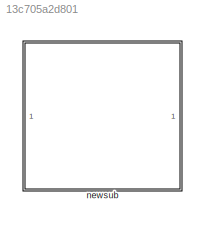
MODEL slx_13c705a2d801
KIND model
CONFIG AbsTol = auto
CONFIG EnableMultiTasking = off
CONFIG FixedStep = auto
CONFIG MaxStep = auto
CONFIG MinStep = auto
CONFIG PreLoadFcn = K=15
CONFIG RelTol = 1e-3
CONFIG SampleTimeConstraint = Unconstrained
CONFIG Solver = VariableStepAuto
CONFIG SolverName = VariableStepAuto
CONFIG StartTime = 0.0
CONFIG StopTime = 10.0
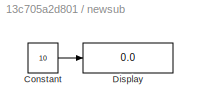
BLOCK [SubSystem] newsub
  Ports = []
  RequestExecContextInheritance = off
BLOCK [Constant] newsub/Constant
  Value = 10
BLOCK [Display] newsub/Display
  Decimation = 1
  Ports = [1]
LINE newsub/Constant:1 -> newsub/Display:1
